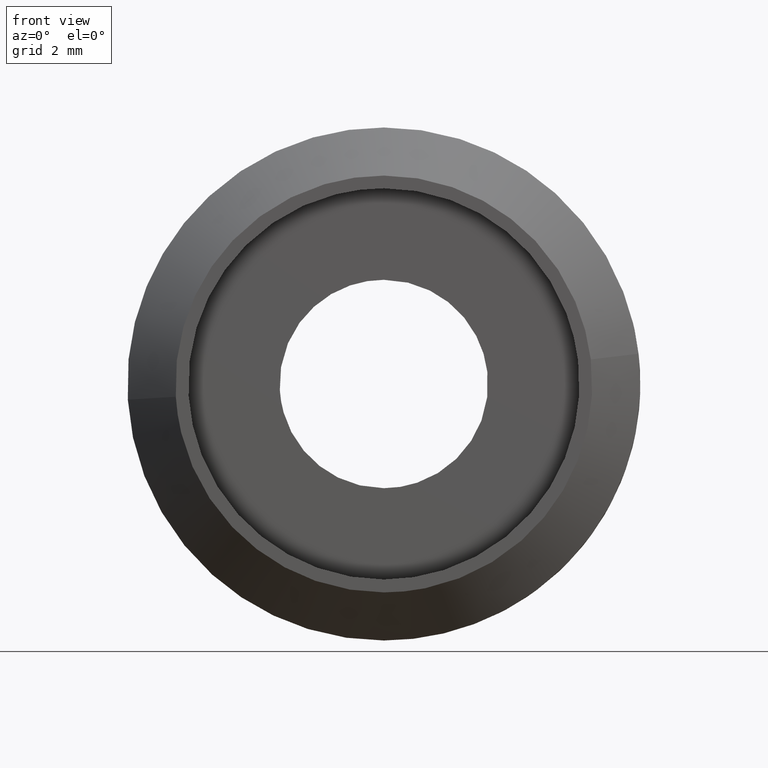
[diagram: clean part render]
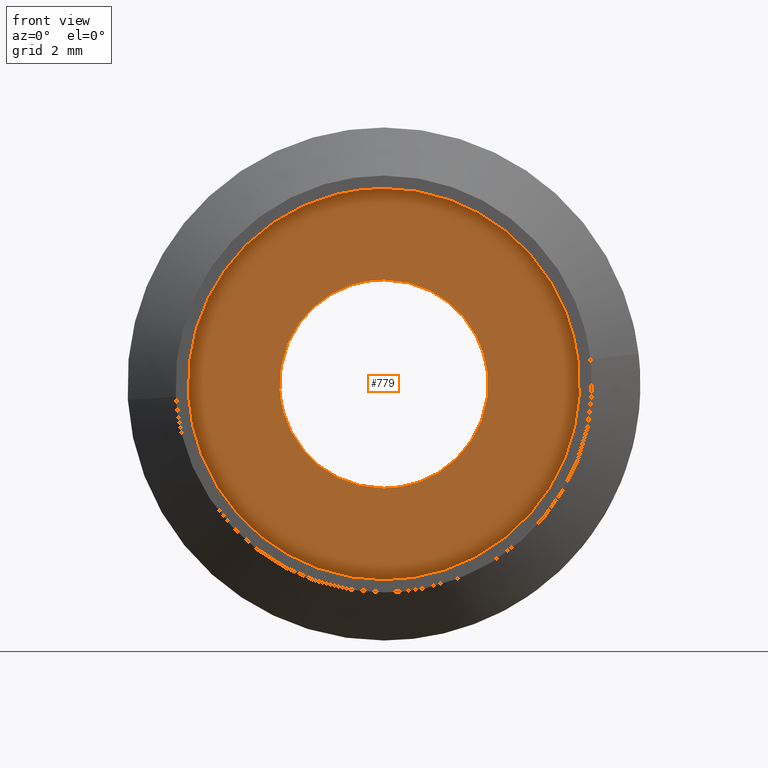
[diagram: same view with one face highlighted and labeled with its STEP entity id]
A machine part, front view. The second image highlights one B-rep face of the part: STEP entity #779.
In plain terms, the highlighted face is a freeform B-spline surface patch.
Its self-contained STEP definition (entity closure, byte-faithful):
#301=CARTESIAN_POINT('',(-3.243938284306497,3.469447E-017,-0.198404656197849));
#302=VERTEX_POINT('',#301);
#308=CARTESIAN_POINT('',(0.0,0.0,-3.250000000000000));
#309=VERTEX_POINT('',#308);
#310=CARTESIAN_POINT('',(0.0,0.0,-3.250000000000000));
#311=CARTESIAN_POINT('',(-3.057297641984092,0.0,-3.250000000000000));
#312=CARTESIAN_POINT('',(-3.243938284306497,3.469447E-017,-0.198404656197849));
#320=(BOUNDED_CURVE()B_SPLINE_CURVE(2,(#310,#311,#312),.UNSPECIFIED.,.F.,.U.)B_SPLINE_CURVE_WITH_KNOTS((3,3),(0.500000000000000,0.739333126988512),.UNSPECIFIED.)CURVE()GEOMETRIC_REPRESENTATION_ITEM()RATIONAL_B_SPLINE_CURVE((1.0,0.719603800270584,0.976072394756659))REPRESENTATION_ITEM(''));
#321=EDGE_CURVE('',#309,#302,#320,.T.);
#323=CARTESIAN_POINT('',(3.227281480315944,3.194357E-017,0.383606890957840));
#324=VERTEX_POINT('',#323);
#325=CARTESIAN_POINT('',(3.227281480315944,3.194357E-017,0.383606890957840));
#326=CARTESIAN_POINT('',(3.250000000000000,0.0,0.192476179922436));
#327=CARTESIAN_POINT('',(3.250000000000000,0.0,0.0));
#328=CARTESIAN_POINT('',(3.250000000000000,0.0,-3.250000000000000));
#329=CARTESIAN_POINT('',(0.0,0.0,-3.250000000000000));
#337=(BOUNDED_CURVE()B_SPLINE_CURVE(2,(#325,#326,#327,#328,#329),.UNSPECIFIED.,.F.,.U.)B_SPLINE_CURVE_WITH_KNOTS((3,2,3),(0.229562702447560,0.250000000000000,0.500000000000000),.UNSPECIFIED.)CURVE()GEOMETRIC_REPRESENTATION_ITEM()RATIONAL_B_SPLINE_CURVE((0.956027202904301,0.976056216544070,1.0,0.707106781186547,1.0))REPRESENTATION_ITEM(''));
#338=EDGE_CURVE('',#324,#309,#337,.T.);
#382=CARTESIAN_POINT('',(0.0,0.0,3.250000000000000));
#383=VERTEX_POINT('',#382);
#384=CARTESIAN_POINT('',(0.0,0.0,3.250000000000000));
#385=CARTESIAN_POINT('',(2.886571147015454,0.0,3.250000000000000));
#386=CARTESIAN_POINT('',(3.227281480315944,3.194357E-017,0.383606890957840));
#394=(BOUNDED_CURVE()B_SPLINE_CURVE(2,(#384,#385,#386),.UNSPECIFIED.,.F.,.U.)B_SPLINE_CURVE_WITH_KNOTS((3,3),(0.0,0.229562702447560),.UNSPECIFIED.)CURVE()GEOMETRIC_REPRESENTATION_ITEM()RATIONAL_B_SPLINE_CURVE((1.0,0.731050564642477,0.956027202904301))REPRESENTATION_ITEM(''));
#395=EDGE_CURVE('',#383,#324,#394,.T.);
#397=CARTESIAN_POINT('',(-3.243938284306497,3.469447E-017,-0.198404656197849));
#398=CARTESIAN_POINT('',(-3.250000000000000,0.0,-0.099294927733059));
#399=CARTESIAN_POINT('',(-3.250000000000000,0.0,0.0));
#400=CARTESIAN_POINT('',(-3.250000000000000,0.0,3.250000000000000));
#401=CARTESIAN_POINT('',(0.0,0.0,3.250000000000000));
#409=(BOUNDED_CURVE()B_SPLINE_CURVE(2,(#397,#398,#399,#400,#401),.UNSPECIFIED.,.F.,.U.)B_SPLINE_CURVE_WITH_KNOTS((3,2,3),(0.739333126988512,0.750000000000000,1.0),.UNSPECIFIED.)CURVE()GEOMETRIC_REPRESENTATION_ITEM()RATIONAL_B_SPLINE_CURVE((0.976072394756659,0.987502980915963,1.0,0.707106781186547,1.0))REPRESENTATION_ITEM(''));
#410=EDGE_CURVE('',#302,#383,#409,.T.);
#453=CARTESIAN_POINT('',(6.057358659377211,5.244424E-014,0.720004216408696));
#454=VERTEX_POINT('',#453);
#455=CARTESIAN_POINT('',(0.0,0.0,-6.100000000000001));
#456=VERTEX_POINT('',#455);
#457=CARTESIAN_POINT('',(6.057358659377211,5.244424E-014,0.720004216408696));
#458=CARTESIAN_POINT('',(6.100000000000000,0.0,0.361264797983567));
#459=CARTESIAN_POINT('',(6.100000000000001,0.0,0.0));
#460=CARTESIAN_POINT('',(6.100000000000001,0.0,-6.100000000000001));
#461=CARTESIAN_POINT('',(0.0,0.0,-6.100000000000001));
#469=(BOUNDED_CURVE()B_SPLINE_CURVE(2,(#457,#458,#459,#460,#461),.UNSPECIFIED.,.F.,.U.)B_SPLINE_CURVE_WITH_KNOTS((3,2,3),(0.229562602276335,0.250000000000000,0.500000000000000),.UNSPECIFIED.)CURVE()GEOMETRIC_REPRESENTATION_ITEM()RATIONAL_B_SPLINE_CURVE((0.956027006564265,0.976056099186180,1.0,0.707106781186547,1.0))REPRESENTATION_ITEM(''));
#470=EDGE_CURVE('',#454,#456,#469,.T.);
#472=CARTESIAN_POINT('',(-6.088622529358291,5.007800E-014,-0.372391856748557));
#473=VERTEX_POINT('',#472);
#474=CARTESIAN_POINT('',(0.0,0.0,-6.100000000000001));
#475=CARTESIAN_POINT('',(-5.738311006366022,0.0,-6.100000000000001));
#476=CARTESIAN_POINT('',(-6.088622529358291,5.007800E-014,-0.372391856748557));
#484=(BOUNDED_CURVE()B_SPLINE_CURVE(2,(#474,#475,#476),.UNSPECIFIED.,.F.,.U.)B_SPLINE_CURVE_WITH_KNOTS((3,3),(0.500000000000000,0.739333082241960),.UNSPECIFIED.)CURVE()GEOMETRIC_REPRESENTATION_ITEM()RATIONAL_B_SPLINE_CURVE((1.0,0.719603852694431,0.976072298856161))REPRESENTATION_ITEM(''));
#485=EDGE_CURVE('',#456,#473,#484,.T.);
#552=CARTESIAN_POINT('',(0.0,0.0,6.100000000000001));
#553=VERTEX_POINT('',#552);
#554=CARTESIAN_POINT('',(0.0,0.0,6.100000000000001));
#555=CARTESIAN_POINT('',(5.417868765141001,0.0,6.100000000000001));
#556=CARTESIAN_POINT('',(6.057358659377211,5.244424E-014,0.720004216408696));
#564=(BOUNDED_CURVE()B_SPLINE_CURVE(2,(#554,#555,#556),.UNSPECIFIED.,.F.,.U.)B_SPLINE_CURVE_WITH_KNOTS((3,3),(0.0,0.229562602276335),.UNSPECIFIED.)CURVE()GEOMETRIC_REPRESENTATION_ITEM()RATIONAL_B_SPLINE_CURVE((1.0,0.731050682000367,0.956027006564265))REPRESENTATION_ITEM(''));
#565=EDGE_CURVE('',#553,#454,#564,.T.);
#599=CARTESIAN_POINT('',(-6.088622529358291,5.007800E-014,-0.372391856748557));
#600=CARTESIAN_POINT('',(-6.100000000000001,0.0,-0.186369732978027));
#601=CARTESIAN_POINT('',(-6.100000000000001,0.0,0.0));
#602=CARTESIAN_POINT('',(-6.100000000000001,0.0,6.100000000000001));
#603=CARTESIAN_POINT('',(0.0,0.0,6.100000000000001));
#611=(BOUNDED_CURVE()B_SPLINE_CURVE(2,(#599,#600,#601,#602,#603),.UNSPECIFIED.,.F.,.U.)B_SPLINE_CURVE_WITH_KNOTS((3,2,3),(0.739333082241960,0.750000000000000,1.0),.UNSPECIFIED.)CURVE()GEOMETRIC_REPRESENTATION_ITEM()RATIONAL_B_SPLINE_CURVE((0.976072298856161,0.987502928492117,1.0,0.707106781186547,1.0))REPRESENTATION_ITEM(''));
#612=EDGE_CURVE('',#473,#553,#611,.T.);
#762=CARTESIAN_POINT('',(-6.709241736825762,0.0,6.709389861829163));
#763=CARTESIAN_POINT('',(-6.709241736825762,0.0,-6.709390298135160));
#764=CARTESIAN_POINT('',(6.709279040988740,0.0,6.709389861829163));
#765=CARTESIAN_POINT('',(6.709279040988740,0.0,-6.709390298135160));
#766=B_SPLINE_SURFACE_WITH_KNOTS('',1,1,((#762,#764),(#763,#765)),.UNSPECIFIED.,.F.,.F.,.U.,(2,2),(2,2),(0.0,13.418780159964321),(0.0,13.418520777814500),.UNSPECIFIED.);
#767=ORIENTED_EDGE('',*,*,#612,.F.);
#768=ORIENTED_EDGE('',*,*,#485,.F.);
#769=ORIENTED_EDGE('',*,*,#470,.F.);
#770=ORIENTED_EDGE('',*,*,#565,.F.);
#771=EDGE_LOOP('',(#767,#768,#769,#770));
#772=FACE_OUTER_BOUND('',#771,.T.);
#773=ORIENTED_EDGE('',*,*,#321,.T.);
#774=ORIENTED_EDGE('',*,*,#410,.T.);
#775=ORIENTED_EDGE('',*,*,#395,.T.);
#776=ORIENTED_EDGE('',*,*,#338,.T.);
#777=EDGE_LOOP('',(#773,#774,#775,#776));
#778=FACE_BOUND('',#777,.T.);
#779=ADVANCED_FACE('',(#772,#778),#766,.T.);